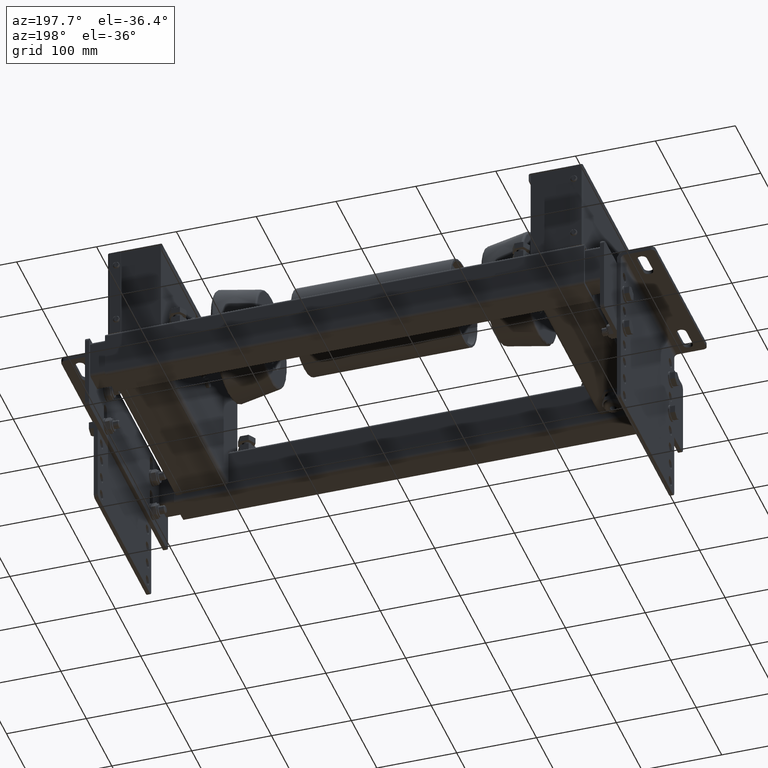
[diagram: clean part render]
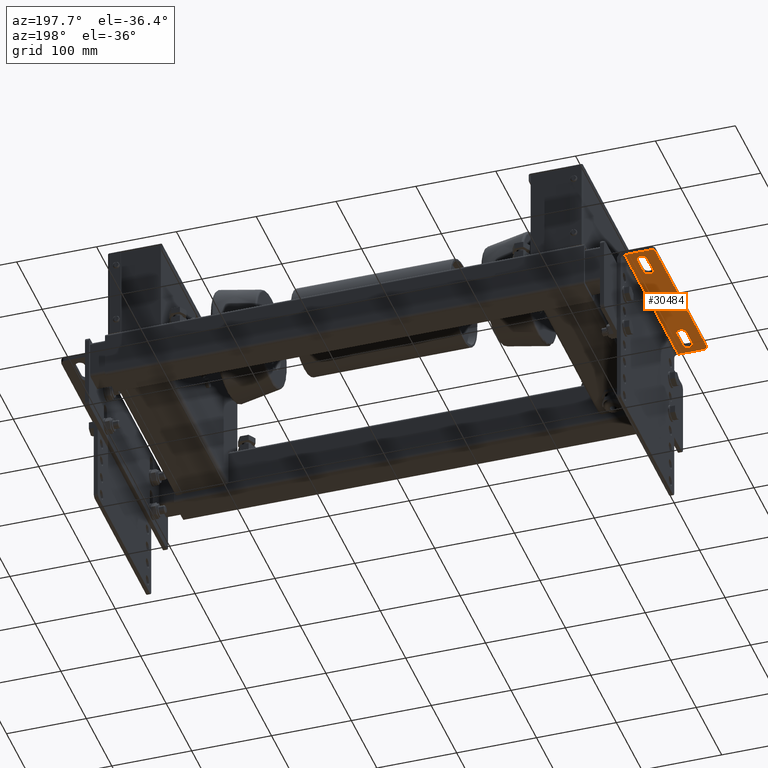
[diagram: same view with one face highlighted and labeled with its STEP entity id]
A machine part, auxiliary view. The second image highlights one B-rep face of the part: STEP entity #30484.
In plain terms, the highlighted planar face has unit normal (0, 0, -1).
Its self-contained STEP definition (entity closure, byte-faithful):
#29839=CARTESIAN_POINT('',(108.042906985577450,83.410933634513441,41.500000000000000));
#29840=VERTEX_POINT('',#29839);
#29847=CARTESIAN_POINT('',(108.042906985577450,83.410933634513441,9.500000000000000));
#29848=VERTEX_POINT('',#29847);
#29849=CARTESIAN_POINT('',(108.042906985577450,83.410933634513441,9.500000000000000));
#29850=DIRECTION('',(0.0,0.0,1.0));
#29851=VECTOR('',#29850,32.0);
#29852=LINE('',#29849,#29851);
#29853=EDGE_CURVE('',#29848,#29840,#29852,.T.);
#30120=CARTESIAN_POINT('',(-101.957093014422580,83.410933634513441,9.500000000000000));
#30121=VERTEX_POINT('',#30120);
#30129=CARTESIAN_POINT('',(-101.957093014422580,83.410933634513441,41.500000000000000));
#30130=VERTEX_POINT('',#30129);
#30131=CARTESIAN_POINT('',(-101.957093014422580,83.410933634513441,9.500000000000000));
#30132=DIRECTION('',(0.0,0.0,1.0));
#30133=VECTOR('',#30132,32.0);
#30134=LINE('',#30131,#30133);
#30135=EDGE_CURVE('',#30121,#30130,#30134,.T.);
#30353=CARTESIAN_POINT('',(103.042906985577450,83.410933634513441,46.500000000000000));
#30354=VERTEX_POINT('',#30353);
#30355=CARTESIAN_POINT('',(103.042906985577450,83.410933634513441,41.500000000000000));
#30356=DIRECTION('',(0.0,1.000000000000000,0.0));
#30357=DIRECTION('',(0.707106781186547,0.0,0.707106781186547));
#30358=AXIS2_PLACEMENT_3D('',#30355,#30356,#30357);
#30359=CIRCLE('',#30358,4.999999999999999);
#30360=EDGE_CURVE('',#30354,#29840,#30359,.T.);
#30381=CARTESIAN_POINT('',(108.042906985577450,83.410933634513441,-0.500000000000000));
#30382=DIRECTION('',(0.0,-1.0,0.0));
#30383=DIRECTION('',(0.0,0.0,-1.0));
#30384=AXIS2_PLACEMENT_3D('',#30381,#30382,#30383);
#30385=PLANE('',#30384);
#30386=ORIENTED_EDGE('',*,*,#30360,.F.);
#30387=CARTESIAN_POINT('',(-96.957093014422583,83.410933634513441,46.500000000000000));
#30388=VERTEX_POINT('',#30387);
#30389=CARTESIAN_POINT('',(103.042906985577450,83.410933634513441,46.500000000000000));
#30390=DIRECTION('',(-1.0,0.0,0.0));
#30391=VECTOR('',#30390,200.000000000000030);
#30392=LINE('',#30389,#30391);
#30393=EDGE_CURVE('',#30354,#30388,#30392,.T.);
#30394=ORIENTED_EDGE('',*,*,#30393,.T.);
#30395=CARTESIAN_POINT('',(-96.957093014422583,83.410933634513441,41.500000000000000));
#30396=DIRECTION('',(0.0,1.000000000000000,0.0));
#30397=DIRECTION('',(-0.707106781186547,0.0,0.707106781186547));
#30398=AXIS2_PLACEMENT_3D('',#30395,#30396,#30397);
#30399=CIRCLE('',#30398,4.999999999999999);
#30400=EDGE_CURVE('',#30130,#30388,#30399,.T.);
#30401=ORIENTED_EDGE('',*,*,#30400,.F.);
#30402=ORIENTED_EDGE('',*,*,#30135,.F.);
#30403=CARTESIAN_POINT('',(108.042906985577450,83.410933634513441,9.500000000000000));
#30404=DIRECTION('',(-1.0,0.0,0.0));
#30405=VECTOR('',#30404,210.000000000000030);
#30406=LINE('',#30403,#30405);
#30407=EDGE_CURVE('',#29848,#30121,#30406,.T.);
#30408=ORIENTED_EDGE('',*,*,#30407,.F.);
#30409=ORIENTED_EDGE('',*,*,#29853,.T.);
#30410=EDGE_LOOP('',(#30386,#30394,#30401,#30402,#30408,#30409));
#30411=FACE_OUTER_BOUND('',#30410,.T.);
#30412=CARTESIAN_POINT('',(-61.957093014422597,83.410933634513441,32.500000000000014));
#30413=VERTEX_POINT('',#30412);
#30414=CARTESIAN_POINT('',(-61.957093014422597,83.410933634513441,20.500000000000011));
#30415=VERTEX_POINT('',#30414);
#30416=CARTESIAN_POINT('',(-61.957093014422597,83.410933634513427,26.500000000000000));
#30417=DIRECTION('',(0.0,1.0,0.0));
#30418=DIRECTION('',(-1.0,0.0,0.0));
#30419=AXIS2_PLACEMENT_3D('',#30416,#30417,#30418);
#30420=CIRCLE('',#30419,5.999999999999989);
#30421=EDGE_CURVE('',#30413,#30415,#30420,.T.);
#30422=ORIENTED_EDGE('',*,*,#30421,.T.);
#30423=CARTESIAN_POINT('',(-86.957093014422597,83.410933634513441,20.500000000000014));
#30424=VERTEX_POINT('',#30423);
#30425=CARTESIAN_POINT('',(-61.957093014422597,83.410933634513441,20.500000000000011));
#30426=DIRECTION('',(-1.0,0.0,0.0));
#30427=VECTOR('',#30426,25.0);
#30428=LINE('',#30425,#30427);
#30429=EDGE_CURVE('',#30415,#30424,#30428,.T.);
#30430=ORIENTED_EDGE('',*,*,#30429,.T.);
#30431=CARTESIAN_POINT('',(-86.957093014422597,83.410933634513441,32.500000000000021));
#30432=VERTEX_POINT('',#30431);
#30433=CARTESIAN_POINT('',(-86.957093014422597,83.410933634513412,26.500000000000004));
#30434=DIRECTION('',(0.0,1.0,0.0));
#30435=DIRECTION('',(-1.0,0.0,0.0));
#30436=AXIS2_PLACEMENT_3D('',#30433,#30434,#30435);
#30437=CIRCLE('',#30436,5.999999999999989);
#30438=EDGE_CURVE('',#30424,#30432,#30437,.T.);
#30439=ORIENTED_EDGE('',*,*,#30438,.T.);
#30440=CARTESIAN_POINT('',(-86.957093014422597,83.410933634513441,32.500000000000021));
#30441=DIRECTION('',(1.0,0.0,0.0));
#30442=VECTOR('',#30441,25.0);
#30443=LINE('',#30440,#30442);
#30444=EDGE_CURVE('',#30432,#30413,#30443,.T.);
#30445=ORIENTED_EDGE('',*,*,#30444,.T.);
#30446=EDGE_LOOP('',(#30422,#30430,#30439,#30445));
#30447=FACE_BOUND('',#30446,.T.);
#30448=CARTESIAN_POINT('',(68.042906985577460,83.410933634513441,20.500000000000000));
#30449=VERTEX_POINT('',#30448);
#30450=CARTESIAN_POINT('',(68.042906985577460,83.410933634513441,32.500000000000021));
#30451=VERTEX_POINT('',#30450);
#30452=CARTESIAN_POINT('',(68.042906985577460,83.410933634513441,26.499999999999996));
#30453=DIRECTION('',(0.0,1.0,0.0));
#30454=DIRECTION('',(-1.0,0.0,0.0));
#30455=AXIS2_PLACEMENT_3D('',#30452,#30453,#30454);
#30456=CIRCLE('',#30455,6.000000000000004);
#30457=EDGE_CURVE('',#30449,#30451,#30456,.T.);
#30458=ORIENTED_EDGE('',*,*,#30457,.T.);
#30459=CARTESIAN_POINT('',(93.042906985577460,83.410933634513441,32.500000000000021));
#30460=VERTEX_POINT('',#30459);
#30461=CARTESIAN_POINT('',(68.042906985577460,83.410933634513441,32.500000000000021));
#30462=DIRECTION('',(1.0,0.0,0.0));
#30463=VECTOR('',#30462,25.0);
#30464=LINE('',#30461,#30463);
#30465=EDGE_CURVE('',#30451,#30460,#30464,.T.);
#30466=ORIENTED_EDGE('',*,*,#30465,.T.);
#30467=CARTESIAN_POINT('',(93.042906985577460,83.410933634513441,20.499999999999989));
#30468=VERTEX_POINT('',#30467);
#30469=CARTESIAN_POINT('',(93.042906985577460,83.410933634513441,26.499999999999996));
#30470=DIRECTION('',(0.0,1.0,0.0));
#30471=DIRECTION('',(-1.0,0.0,0.0));
#30472=AXIS2_PLACEMENT_3D('',#30469,#30470,#30471);
#30473=CIRCLE('',#30472,6.000000000000007);
#30474=EDGE_CURVE('',#30460,#30468,#30473,.T.);
#30475=ORIENTED_EDGE('',*,*,#30474,.T.);
#30476=CARTESIAN_POINT('',(93.042906985577460,83.410933634513441,20.499999999999989));
#30477=DIRECTION('',(-1.0,0.0,0.0));
#30478=VECTOR('',#30477,25.0);
#30479=LINE('',#30476,#30478);
#30480=EDGE_CURVE('',#30468,#30449,#30479,.T.);
#30481=ORIENTED_EDGE('',*,*,#30480,.T.);
#30482=EDGE_LOOP('',(#30458,#30466,#30475,#30481));
#30483=FACE_BOUND('',#30482,.T.);
#30484=ADVANCED_FACE('',(#30411,#30447,#30483),#30385,.T.);